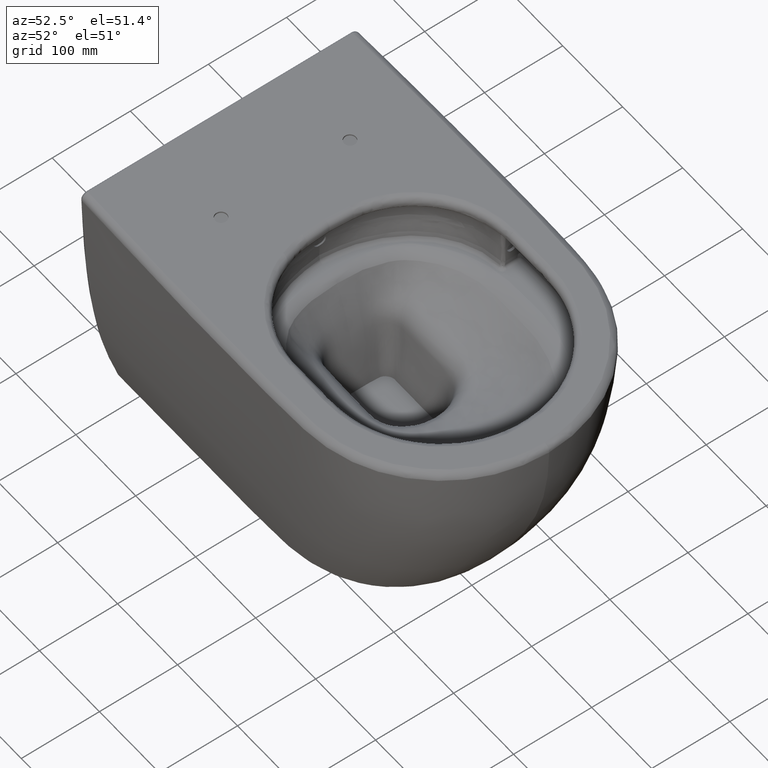
[diagram: clean part render]
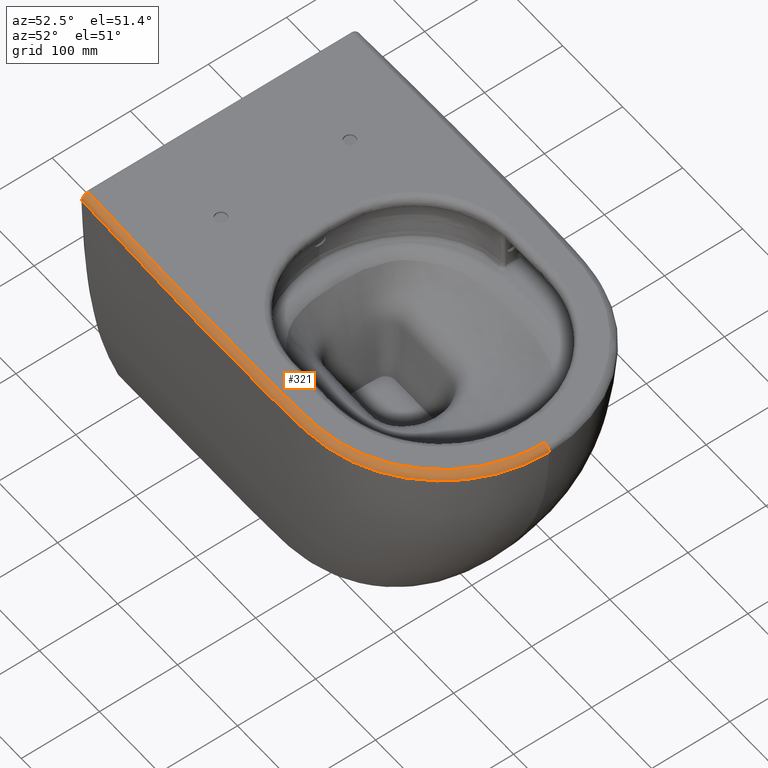
[diagram: same view with one face highlighted and labeled with its STEP entity id]
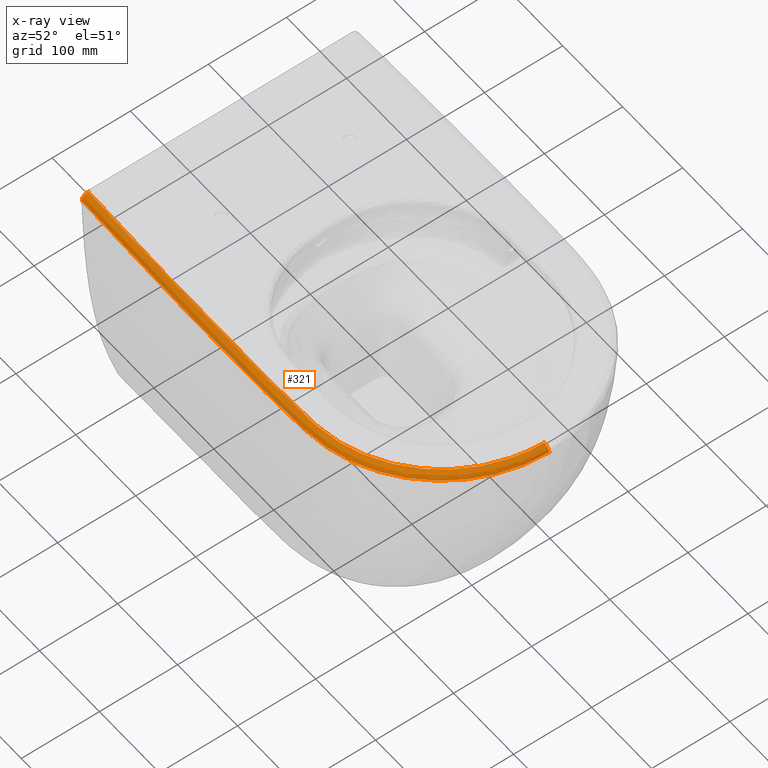
[diagram: x-ray of the same camera — body ghosted, the highlighted face saturated]
A machine part, auxiliary view. The second image highlights one B-rep face of the part: STEP entity #321.
The next image is the same camera in x-ray: the body ghosted, the highlighted face saturated — about 0% of this face is hidden behind the body in this view.
In plain terms, the highlighted face is a freeform B-spline surface patch.
Its self-contained STEP definition (entity closure, byte-faithful):
#65=(
BOUNDED_SURFACE()
B_SPLINE_SURFACE(3,2,((#18600,#18601,#18602),(#18603,#18604,#18605),(#18606,
#18607,#18608),(#18609,#18610,#18611),(#18612,#18613,#18614),(#18615,#18616,
#18617),(#18618,#18619,#18620),(#18621,#18622,#18623),(#18624,#18625,#18626),
(#18627,#18628,#18629),(#18630,#18631,#18632),(#18633,#18634,#18635),(#18636,
#18637,#18638),(#18639,#18640,#18641),(#18642,#18643,#18644),(#18645,#18646,
#18647),(#18648,#18649,#18650),(#18651,#18652,#18653),(#18654,#18655,#18656),
(#18657,#18658,#18659),(#18660,#18661,#18662),(#18663,#18664,#18665),(#18666,
#18667,#18668),(#18669,#18670,#18671),(#18672,#18673,#18674),(#18675,#18676,
#18677),(#18678,#18679,#18680),(#18681,#18682,#18683),(#18684,#18685,#18686),
(#18687,#18688,#18689),(#18690,#18691,#18692),(#18693,#18694,#18695),(#18696,
#18697,#18698),(#18699,#18700,#18701),(#18702,#18703,#18704),(#18705,#18706,
#18707),(#18708,#18709,#18710),(#18711,#18712,#18713),(#18714,#18715,#18716),
(#18717,#18718,#18719),(#18720,#18721,#18722),(#18723,#18724,#18725),(#18726,
#18727,#18728),(#18729,#18730,#18731),(#18732,#18733,#18734),(#18735,#18736,
#18737),(#18738,#18739,#18740),(#18741,#18742,#18743)),.UNSPECIFIED.,.F.,
 .F.,.F.)
B_SPLINE_SURFACE_WITH_KNOTS((4,2,2,2,2,2,2,2,2,2,2,2,2,2,2,2,2,2,2,2,2,
2,2,4),(3,3),(0.,0.0625,0.09375,0.125,0.15625,0.1875,0.25,0.375,0.4375,
0.5,0.53125,0.5625,0.59375,0.625,0.65625,0.6875,0.71875,0.75,0.8125,0.84375,
0.875,0.90625,0.9375,1.),(0.,1.),.UNSPECIFIED.)
GEOMETRIC_REPRESENTATION_ITEM()
RATIONAL_B_SPLINE_SURFACE(((1.,0.693323986367239,1.),(1.,0.691853276891526,
1.),(1.,0.690524254100873,1.),(1.,0.688774479505386,1.),(1.,0.688231622773556,
1.),(1.,0.687224785860818,1.),(1.,0.686803243985102,1.),(1.,0.685872407958468,
1.),(1.,0.685346400762625,1.),(1.,0.684386620349228,1.),(1.,0.683943223276197,
1.),(1.,0.682613517150949,1.),(1.,0.681732493670183,1.),(1.,0.679226182788848,
1.),(1.,0.67772236826971,1.),(1.,0.675705109226091,1.),(1.,0.675074157858912,
1.),(1.,0.673812252872676,1.),(1.,0.673178189194786,1.),(1.,0.67231780156765,
1.),(1.,0.672053276483602,1.),(1.,0.671500786596633,1.),(1.,0.671204731491319,
1.),(1.,0.670650261718393,1.),(1.,0.67036658523588,1.),(1.,0.670036341150816,
1.),(1.,0.67000218686592,1.),(1.,0.670256765628687,1.),(1.,0.670562146144866,
1.),(1.,0.671526975544283,1.),(1.,0.672200667352556,1.),(1.,0.673826035218981,
1.),(1.,0.674784914170329,1.),(1.,0.676842817335926,1.),(1.,0.677949632278162,
1.),(1.,0.68125144551455,1.),(1.,0.683412425882029,1.),(1.,0.686472051799072,
1.),(1.,0.687471727976981,1.),(1.,0.689432257478452,1.),(1.,0.690393278096555,
1.),(1.,0.692231868647639,1.),(1.,0.693119546765249,1.),(1.,0.694710733200944,
1.),(1.,0.695409536592535,1.),(1.,0.697017174255553,1.),(1.,0.697463282749246,
1.),(1.,0.697481985925623,1.)))
REPRESENTATION_ITEM('')
SURFACE()
);
#193=FACE_OUTER_BOUND('',#548,.T.);
#321=ADVANCED_FACE('',(#193),#65,.T.);
#437=CIRCLE('',#2284,8.);
#548=EDGE_LOOP('',(#978,#979,#980,#981));
#978=ORIENTED_EDGE('',*,*,#1610,.F.);
#979=ORIENTED_EDGE('',*,*,#1821,.T.);
#980=ORIENTED_EDGE('',*,*,#1707,.F.);
#981=ORIENTED_EDGE('',*,*,#1822,.F.);
#1351=VERTEX_POINT('',#2733);
#1352=VERTEX_POINT('',#2774);
#1441=VERTEX_POINT('',#5222);
#1445=VERTEX_POINT('',#5276);
#1610=EDGE_CURVE('',#1351,#1352,#1969,.T.);
#1707=EDGE_CURVE('',#1445,#1441,#2055,.T.);
#1821=EDGE_CURVE('',#1351,#1441,#2152,.T.);
#1822=EDGE_CURVE('',#1352,#1445,#437,.T.);
#1969=B_SPLINE_CURVE_WITH_KNOTS('',3,(#2734,#2735,#2736,#2737,#2738,#2739,
#2740,#2741,#2742,#2743,#2744,#2745,#2746,#2747,#2748,#2749,#2750,#2751,
#2752,#2753,#2754,#2755,#2756,#2757,#2758,#2759,#2760,#2761,#2762,#2763,
#2764,#2765,#2766,#2767,#2768,#2769,#2770,#2771,#2772,#2773),
 .UNSPECIFIED.,.F.,.F.,(4,2,2,2,2,2,2,2,2,2,2,2,2,2,2,2,2,2,2,4),(0.,0.0624999999999999,
0.125,0.1875,0.249999999999999,0.374999999999999,0.437499999999999,0.499999999999999,
0.562499999999999,0.624999999999999,0.656249999999999,0.687499999999999,
0.71875,0.75,0.8125,0.84375,0.875,0.90625,0.9375,1.),.UNSPECIFIED.);
#2055=B_SPLINE_CURVE_WITH_KNOTS('',3,(#5277,#5278,#5279,#5280,#5281,#5282,
#5283,#5284,#5285,#5286,#5287,#5288,#5289,#5290,#5291,#5292,#5293,#5294,
#5295,#5296,#5297,#5298,#5299,#5300,#5301,#5302,#5303,#5304,#5305,#5306,
#5307,#5308,#5309,#5310,#5311,#5312,#5313,#5314,#5315,#5316),
 .UNSPECIFIED.,.F.,.F.,(4,2,2,2,2,2,2,2,2,2,2,2,2,2,2,2,2,2,2,4),(0.,0.0625000000000006,
0.0937500000000009,0.125000000000001,0.156250000000001,0.187500000000002,
0.250000000000002,0.281250000000001,0.312500000000001,0.343750000000001,
0.375000000000001,0.437500000000001,0.500000000000001,0.562500000000001,
0.625000000000001,0.75,0.8125,0.875,0.9375,1.),.UNSPECIFIED.);
#2152=B_SPLINE_CURVE_WITH_KNOTS('',3,(#18593,#18594,#18595,#18596,#18597,
#18598),.UNSPECIFIED.,.F.,.F.,(4,2,4),(0.,0.5,1.),.UNSPECIFIED.);
#2284=AXIS2_PLACEMENT_3D('',#18599,#2393,#2394);
#2393=DIRECTION('',(0.,1.,0.));
#2394=DIRECTION('',(0.,0.,1.));
#2733=CARTESIAN_POINT('',(-19.2303729985999,-169.40105015213,8.99999999999905));
#2734=CARTESIAN_POINT('',(-19.2303729985999,-169.40105015213,8.99999999999862));
#2735=CARTESIAN_POINT('',(-5.9467829326102,-169.974848563831,8.99999999999861));
#2736=CARTESIAN_POINT('',(7.33770233310579,-170.455018732838,8.99999999999899));
#2737=CARTESIAN_POINT('',(33.9088280126786,-171.189953804016,8.99999999999896));
#2738=CARTESIAN_POINT('',(47.1959308358952,-171.396355671123,8.999999999999));
#2739=CARTESIAN_POINT('',(73.7704884331907,-171.772349138518,8.99999999999898));
#2740=CARTESIAN_POINT('',(87.0570290174481,-172.037555140802,8.99999999999861));
#2741=CARTESIAN_POINT('',(113.631881033334,-172.382755596986,8.99999999999858));
#2742=CARTESIAN_POINT('',(126.919431268814,-172.542362963652,8.99999999999884));
#2743=CARTESIAN_POINT('',(166.782785402965,-172.947614106726,8.9999999999988));
#2744=CARTESIAN_POINT('',(193.359543216883,-173.093488629881,8.99999999999867));
#2745=CARTESIAN_POINT('',(233.226707019044,-173.100289560561,8.99999999999862));
#2746=CARTESIAN_POINT('',(246.51611303449,-173.06580234487,8.99999999999902));
#2747=CARTESIAN_POINT('',(273.095301120705,-172.957496579745,8.99999999999899));
#2748=CARTESIAN_POINT('',(286.384936534393,-172.899016780364,8.99999999999864));
#2749=CARTESIAN_POINT('',(312.966140834856,-172.579836736234,8.99999999999862));
#2750=CARTESIAN_POINT('',(326.263462093225,-172.337722916912,8.99999999999855));
#2751=CARTESIAN_POINT('',(352.804686944581,-171.34179108378,8.99999999999852));
#2752=CARTESIAN_POINT('',(366.04854203846,-170.541707265277,8.99999999999877));
#2753=CARTESIAN_POINT('',(385.721933114021,-167.169282128858,8.99999999999875));
#2754=CARTESIAN_POINT('',(392.288845615773,-165.682651449991,8.99999999999846));
#2755=CARTESIAN_POINT('',(405.091301249741,-161.969917007304,8.99999999999844));
#2756=CARTESIAN_POINT('',(411.333428687216,-159.746935688021,8.99999999999879));
#2757=CARTESIAN_POINT('',(423.501495636008,-154.572383012859,8.99999999999878));
#2758=CARTESIAN_POINT('',(429.426966829684,-151.619732515312,8.99999999999872));
#2759=CARTESIAN_POINT('',(440.963445620798,-144.989814847232,8.9999999999987));
#2760=CARTESIAN_POINT('',(446.598523664415,-141.290953101186,8.99999999999843));
#2761=CARTESIAN_POINT('',(462.624588197803,-129.389020797392,8.99999999999842));
#2762=CARTESIAN_POINT('',(472.280444976245,-120.338902587172,8.99999999999834));
#2763=CARTESIAN_POINT('',(485.186951597465,-105.052509056224,8.99999999999832));
#2764=CARTESIAN_POINT('',(489.220185998806,-99.6604412897475,8.99999999999842));
#2765=CARTESIAN_POINT('',(496.520260971294,-88.5691056382983,8.99999999999841));
#2766=CARTESIAN_POINT('',(499.815072842883,-82.8349616337647,8.99999999999814));
#2767=CARTESIAN_POINT('',(505.729315408482,-71.0083287916148,8.99999999999814));
#2768=CARTESIAN_POINT('',(508.348787044091,-64.9158616768581,8.99999999999807));
#2769=CARTESIAN_POINT('',(512.913531205601,-52.3732097977387,8.99999999999806));
#2770=CARTESIAN_POINT('',(514.847084342086,-45.9399704297847,8.99999999999795));
#2771=CARTESIAN_POINT('',(519.514260824754,-26.5715379188491,8.99999999999795));
#2772=CARTESIAN_POINT('',(521.210015952879,-13.4256657032474,8.9999999999984));
#2773=CARTESIAN_POINT('',(521.210009837884,-6.34081312545328E-14,8.9999999999984));
#2774=CARTESIAN_POINT('',(521.210009837884,0.,8.9999999999984));
#5222=CARTESIAN_POINT('',(-19.3595098996278,-177.396571851814,0.681414294364177));
#5276=CARTESIAN_POINT('',(529.207085141705,-5.25838288303345E-14,0.783697931053027));
#5277=CARTESIAN_POINT('',(529.207085141705,-3.48390489175875E-14,0.7836979310526));
#5278=CARTESIAN_POINT('',(529.2070912429,-13.6878896744705,0.783703941084405));
#5279=CARTESIAN_POINT('',(527.527000896361,-27.0987952788872,0.773945503208375));
#5280=CARTESIAN_POINT('',(522.886590829921,-46.8655934058909,0.740475875074101));
#5281=CARTESIAN_POINT('',(520.966941540296,-53.426517272311,0.725885258434597));
#5282=CARTESIAN_POINT('',(516.418895473676,-66.2712755054237,0.692391986763366));
#5283=CARTESIAN_POINT('',(513.808828626295,-72.51525507133,0.673624698630551));
#5284=CARTESIAN_POINT('',(507.919316125153,-84.6478615854675,0.634627574446843));
#5285=CARTESIAN_POINT('',(504.640131666155,-90.5366271789905,0.614393751995667));
#5286=CARTESIAN_POINT('',(497.382528893279,-101.942957877337,0.572780552396047));
#5287=CARTESIAN_POINT('',(493.379800205222,-107.489060975599,0.551710822394506));
#5288=CARTESIAN_POINT('',(480.47507310965,-123.350841248882,0.487166288702836));
#5289=CARTESIAN_POINT('',(470.815598442514,-132.77884495923,0.442142598549052));
#5290=CARTESIAN_POINT('',(454.803982683145,-145.268462829805,0.372774244672799));
#5291=CARTESIAN_POINT('',(449.173252950865,-149.174477854504,0.349310562415948));
#5292=CARTESIAN_POINT('',(437.559267916266,-156.276780559071,0.304642185804742));
#5293=CARTESIAN_POINT('',(431.595951305036,-159.467503502766,0.283498135665468));
#5294=CARTESIAN_POINT('',(419.356269739062,-165.127185138146,0.246010969910439));
#5295=CARTESIAN_POINT('',(413.079890284221,-167.596112006074,0.229924060541154));
#5296=CARTESIAN_POINT('',(400.212226367595,-171.807932689783,0.204478115600811));
#5297=CARTESIAN_POINT('',(393.580353500029,-173.556525885759,0.195525019915686));
#5298=CARTESIAN_POINT('',(373.581676147474,-177.677936111812,0.178917517642324));
#5299=CARTESIAN_POINT('',(360.109620746144,-178.866073455243,0.183659046409356));
#5300=CARTESIAN_POINT('',(333.067737331993,-180.150153926278,0.206301094242302));
#5301=CARTESIAN_POINT('',(319.509866963043,-180.415299119517,0.219161166984405));
#5302=CARTESIAN_POINT('',(292.399198563251,-180.822313032877,0.242927137659878));
#5303=CARTESIAN_POINT('',(278.842110106016,-180.893314988902,0.256417051266963));
#5304=CARTESIAN_POINT('',(251.728847826801,-181.016643903682,0.283981557004745));
#5305=CARTESIAN_POINT('',(238.172183225954,-181.060339081814,0.297700245648188));
#5306=CARTESIAN_POINT('',(197.501989283418,-181.082518129735,0.340987275411369));
#5307=CARTESIAN_POINT('',(170.387735910022,-180.94965075731,0.373498668259101));
#5308=CARTESIAN_POINT('',(129.721065928825,-180.555200267299,0.42788203683341));
#5309=CARTESIAN_POINT('',(116.166023737444,-180.394896824081,0.447123998613682));
#5310=CARTESIAN_POINT('',(89.0563783154651,-180.049684170386,0.486383453957459));
#5311=CARTESIAN_POINT('',(75.5030477361139,-179.793291456192,0.507026165449037));
#5312=CARTESIAN_POINT('',(48.3944085597255,-179.391948579326,0.551124137136303));
#5313=CARTESIAN_POINT('',(34.839892993709,-179.201984453858,0.569725085915741));
#5314=CARTESIAN_POINT('',(7.73723391101795,-178.465046223215,0.620110026695229));
#5315=CARTESIAN_POINT('',(-5.81200597078416,-177.979446855367,0.649047463593486));
#5316=CARTESIAN_POINT('',(-19.3595098996278,-177.396571851814,0.681414294364413));
#18593=CARTESIAN_POINT('',(-19.2303729985999,-169.40105015213,8.99999999999918));
#18594=CARTESIAN_POINT('',(-19.2654316672795,-171.567888180347,8.9999999999992));
#18595=CARTESIAN_POINT('',(-19.299724777627,-173.690982891508,8.08337888372549));
#18596=CARTESIAN_POINT('',(-19.3475295857643,-176.653138412279,5.00012097650648));
#18597=CARTESIAN_POINT('',(-19.3609016554547,-177.482894615248,2.84683776684656));
#18598=CARTESIAN_POINT('',(-19.3595098996278,-177.396571851814,0.681414294364387));
#18599=CARTESIAN_POINT('',(521.210009837884,2.4930965375202E-13,0.99999999999822));
#18600=CARTESIAN_POINT('',(-23.4061294107952,-177.219833754577,0.691170401153441));
#18601=CARTESIAN_POINT('',(-23.420279641315,-177.540512541535,8.99999999999888));
#18602=CARTESIAN_POINT('',(-23.0537284927777,-169.233568177234,8.99999999999885));
#18603=CARTESIAN_POINT('',(-10.0198003882764,-177.809263710103,0.658756175357247));
#18604=CARTESIAN_POINT('',(-10.0057940979742,-178.16628710461,9.00000000602083));
#18605=CARTESIAN_POINT('',(-9.69853994398647,-169.82287749315,8.99999999999883));
#18606=CARTESIAN_POINT('',(3.38062105225485,-178.316908279646,0.629158152363057));
#18607=CARTESIAN_POINT('',(3.38960785022345,-178.705742119947,8.99999999650398));
#18608=CARTESIAN_POINT('',(3.65844332489732,-170.330171982554,8.99999999999911));
#18609=CARTESIAN_POINT('',(23.487666817113,-178.901738397867,0.590559096590245));
#18610=CARTESIAN_POINT('',(23.4819394024249,-179.33270471226,9.0000000017511));
#18611=CARTESIAN_POINT('',(23.698350146192,-170.914959505734,8.99999999999909));
#18612=CARTESIAN_POINT('',(30.1911695547964,-179.068398722795,0.578600210245929));
#18613=CARTESIAN_POINT('',(30.1855948616796,-179.512583883386,8.99999999975006));
#18614=CARTESIAN_POINT('',(30.3790050457734,-171.081673045486,8.99999999999913));
#18615=CARTESIAN_POINT('',(43.5996689481962,-179.344111082346,0.55644244617928));
#18616=CARTESIAN_POINT('',(43.5962079163726,-179.813003132671,9.00000000024855));
#18617=CARTESIAN_POINT('',(43.741711789094,-171.357639550582,8.99999999999911));
#18618=CARTESIAN_POINT('',(50.3337899604782,-179.440368744585,0.547175669225744));
#18619=CARTESIAN_POINT('',(50.332909521531,-179.919613607346,8.99999999987738));
#18620=CARTESIAN_POINT('',(50.4240846102555,-171.453689652191,8.99999999999904));
#18621=CARTESIAN_POINT('',(63.6753103207917,-179.609861329012,0.526731894281947));
#18622=CARTESIAN_POINT('',(63.6726834443743,-180.112007239886,9.00000000012084));
#18623=CARTESIAN_POINT('',(63.7893436730184,-171.624671311416,8.99999999999902));
#18624=CARTESIAN_POINT('',(70.325994181824,-179.729339112528,0.515191339838169));
#18625=CARTESIAN_POINT('',(70.321306625509,-180.244463609065,8.9999999999525));
#18626=CARTESIAN_POINT('',(70.4711176869669,-171.745352228294,8.99999999999887));
#18627=CARTESIAN_POINT('',(83.7017356013091,-179.961137044521,0.494157053153136));
#18628=CARTESIAN_POINT('',(83.6974301227927,-180.500042378013,9.00000000004524));
#18629=CARTESIAN_POINT('',(83.8348715770263,-171.978246304911,8.99999999999886));
#18630=CARTESIAN_POINT('',(90.4041939140203,-180.062525642509,0.484450178640504));
#18631=CARTESIAN_POINT('',(90.400742265569,-180.612438926561,8.99999999931505));
#18632=CARTESIAN_POINT('',(90.5171070800285,-172.079944706981,8.99999999999862));
#18633=CARTESIAN_POINT('',(110.471982016074,-180.327603684553,0.455366848834353));
#18634=CARTESIAN_POINT('',(110.482543482147,-180.910834514448,9.00000000136841));
#18635=CARTESIAN_POINT('',(110.564746455326,-172.346668460618,8.9999999999986));
#18636=CARTESIAN_POINT('',(123.835561125109,-180.486864172242,0.436135917935526));
#18637=CARTESIAN_POINT('',(123.844745750208,-181.092083040529,8.99999999838925));
#18638=CARTESIAN_POINT('',(123.930257295447,-172.507293673921,8.99999999999883));
#18639=CARTESIAN_POINT('',(163.966806154143,-180.903512214132,0.381526652252647));
#18640=CARTESIAN_POINT('',(164.027356805997,-181.572380334698,9.00000000322983));
#18641=CARTESIAN_POINT('',(164.028287195196,-172.927577634827,8.99999999999879));
#18642=CARTESIAN_POINT('',(190.731059951903,-181.057481523686,0.34889280296746));
#18643=CARTESIAN_POINT('',(190.781199519483,-181.763891480128,9.00000000522983));
#18644=CARTESIAN_POINT('',(190.763316472145,-173.083983300129,8.99999999999888));
#18645=CARTESIAN_POINT('',(230.881294450785,-181.07361970901,0.305231077172345));
#18646=CARTESIAN_POINT('',(230.895554580638,-181.831582925577,8.99999999737555));
#18647=CARTESIAN_POINT('',(230.871081621614,-173.103826387454,8.99999999999883));
#18648=CARTESIAN_POINT('',(244.264166671895,-181.04123324895,0.291595526364928));
#18649=CARTESIAN_POINT('',(244.278880944314,-181.815344052088,8.99999999817959));
#18650=CARTESIAN_POINT('',(244.241254764387,-173.072676731748,8.99999999999871));
#18651=CARTESIAN_POINT('',(271.022006973408,-180.934164199969,0.264360866083169));
#18652=CARTESIAN_POINT('',(271.038506425097,-181.740795564297,9.00000000182115));
#18653=CARTESIAN_POINT('',(270.982627891378,-172.968140148731,8.99999999999868));
#18654=CARTESIAN_POINT('',(284.39989373186,-180.876606639708,0.250696725146067));
#18655=CARTESIAN_POINT('',(284.416051511992,-181.699570234942,8.99999999878182));
#18656=CARTESIAN_POINT('',(284.353413780679,-172.911786361417,8.99999999999883));
#18657=CARTESIAN_POINT('',(304.523517854026,-180.649487735096,0.232178305471876));
#18658=CARTESIAN_POINT('',(304.538093611283,-181.494793201688,9.00000000060805));
#18659=CARTESIAN_POINT('',(304.412998626093,-172.687155802466,8.99999999999881));
#18660=CARTESIAN_POINT('',(311.241236348738,-180.543756144395,0.226488482284665));
#18661=CARTESIAN_POINT('',(311.258976785018,-181.39586385615,9.00000000036978));
#18662=CARTESIAN_POINT('',(311.101061826676,-172.582424965633,8.99999999999861));
#18663=CARTESIAN_POINT('',(324.669370837718,-180.26066189302,0.214611681067871));
#18664=CARTESIAN_POINT('',(324.69323744017,-181.127028651187,8.99999999962719));
#18665=CARTESIAN_POINT('',(324.475288222412,-172.301625504874,8.9999999999986));
#18666=CARTESIAN_POINT('',(331.378758091671,-180.096089812246,0.208251435302688));
#18667=CARTESIAN_POINT('',(331.405476817405,-180.970088863142,8.99999999983642));
#18668=CARTESIAN_POINT('',(331.160353880211,-172.138106925126,8.99999999999865));
#18669=CARTESIAN_POINT('',(344.862670739764,-179.617309902763,0.196347147109295));
#18670=CARTESIAN_POINT('',(344.903943816622,-180.505284482917,9.00000000016101));
#18671=CARTESIAN_POINT('',(344.517549188762,-171.665008913352,8.99999999999864));
#18672=CARTESIAN_POINT('',(351.624043514092,-179.312170369856,0.190261302216134));
#18673=CARTESIAN_POINT('',(351.674474359914,-180.207226303445,9.00000000085541));
#18674=CARTESIAN_POINT('',(351.19036962148,-171.363229102841,8.9999999999989));
#18675=CARTESIAN_POINT('',(365.275235717155,-178.271328945327,0.183178738309795));
#18676=CARTESIAN_POINT('',(365.365022470527,-179.172060207141,8.99999999914195));
#18677=CARTESIAN_POINT('',(364.499653741978,-170.349164297994,8.99999999999888));
#18678=CARTESIAN_POINT('',(372.154621373949,-177.511334311397,0.182446626871619));
#18679=CARTESIAN_POINT('',(372.269583258551,-178.410420536915,8.99999999959821));
#18680=CARTESIAN_POINT('',(371.134119198452,-169.614317206892,8.99999999999878));
#18681=CARTESIAN_POINT('',(385.894307299347,-175.2610353241,0.187905851061465));
#18682=CARTESIAN_POINT('',(386.068536641208,-176.143654286888,9.00000000039919));
#18683=CARTESIAN_POINT('',(384.341586992073,-167.450640961148,8.99999999999877));
#18684=CARTESIAN_POINT('',(392.810838751096,-173.756007523637,0.194453746099813));
#18685=CARTESIAN_POINT('',(393.014202485859,-174.624581624639,9.00000000020237));
#18686=CARTESIAN_POINT('',(390.955177351423,-166.009656907856,8.99999999999842));
#18687=CARTESIAN_POINT('',(406.340273258579,-169.948472623634,0.215171938347788));
#18688=CARTESIAN_POINT('',(406.603407648899,-170.774047692394,8.99999999979472));
#18689=CARTESIAN_POINT('',(403.880701959154,-162.370023851198,8.9999999999984));
#18690=CARTESIAN_POINT('',(412.94999058848,-167.653137212401,0.229649227611577));
#18691=CARTESIAN_POINT('',(413.237820962788,-168.452369639428,8.99999999984211));
#18692=CARTESIAN_POINT('',(410.182686458829,-160.179727943071,8.99999999999812));
#18693=CARTESIAN_POINT('',(425.826825097825,-162.289658776737,0.264653844669513));
#18694=CARTESIAN_POINT('',(426.160000925629,-163.024356790627,9.00000000015375));
#18695=CARTESIAN_POINT('',(422.465923801658,-155.06007600292,8.99999999999811));
#18696=CARTESIAN_POINT('',(432.09814915104,-159.219583180738,0.285337946722507));
#18697=CARTESIAN_POINT('',(432.447880208782,-159.919752345331,9.0000000003006));
#18698=CARTESIAN_POINT('',(428.446969809184,-152.130243355869,8.99999999999839));
#18699=CARTESIAN_POINT('',(444.294132217769,-152.317321069046,0.329842249888224));
#18700=CARTESIAN_POINT('',(444.670056734989,-152.942010863367,8.99999999969708));
#18701=CARTESIAN_POINT('',(440.090458032293,-145.536421163604,8.99999999999838));
#18702=CARTESIAN_POINT('',(450.252578528359,-148.45868533199,0.353831882047797));
#18703=CARTESIAN_POINT('',(450.636975929076,-149.04562761814,9.00000000082505));
#18704=CARTESIAN_POINT('',(445.782821716781,-141.848077624012,8.99999999999845));
#18705=CARTESIAN_POINT('',(467.206694814969,-136.017218114834,0.42557898545858));
#18706=CARTESIAN_POINT('',(467.577359793083,-136.510644423014,8.99999999835334));
#18707=CARTESIAN_POINT('',(461.985093803057,-129.951701053242,8.99999999999843));
#18708=CARTESIAN_POINT('',(477.414519342068,-126.54183995562,0.472774136896064));
#18709=CARTESIAN_POINT('',(477.7898792442,-126.96954088861,9.00000000470164));
#18710=CARTESIAN_POINT('',(471.743289036185,-120.888868348391,8.99999999999836));
#18711=CARTESIAN_POINT('',(491.072492095237,-110.503726181945,0.539885401778152));
#18712=CARTESIAN_POINT('',(491.449882916129,-110.812241128773,8.99999999765719));
#18713=CARTESIAN_POINT('',(484.787164942048,-105.565894249217,8.99999999999835));
#18714=CARTESIAN_POINT('',(495.347959258412,-104.834815337856,0.561862653628602));
#18715=CARTESIAN_POINT('',(495.718366026716,-105.113646835448,9.00000000005066));
#18716=CARTESIAN_POINT('',(488.868341661633,-100.152211893644,8.99999999999842));
#18717=CARTESIAN_POINT('',(503.092185051152,-93.1588784700894,0.605054027672654));
#18718=CARTESIAN_POINT('',(503.44225451459,-93.3817425986967,8.99999999994631));
#18719=CARTESIAN_POINT('',(496.254760513615,-89.0118521951694,8.99999999999841));
#18720=CARTESIAN_POINT('',(506.586199296995,-87.1210221180633,0.626272534194561));
#18721=CARTESIAN_POINT('',(506.925344690354,-87.3182061104361,9.00000000081917));
#18722=CARTESIAN_POINT('',(499.587815860014,-83.2505812155735,8.99999999999866));
#18723=CARTESIAN_POINT('',(512.849177071286,-74.6797742965975,0.666945837077972));
#18724=CARTESIAN_POINT('',(513.161615549602,-74.8312732231717,8.99999999918032));
#18725=CARTESIAN_POINT('',(505.569261669773,-71.3647686570872,8.99999999999865));
#18726=CARTESIAN_POINT('',(515.620100374303,-68.2738250155308,0.686625170245108));
#18727=CARTESIAN_POINT('',(515.919337935169,-68.4043849894138,9.00000000000966));
#18728=CARTESIAN_POINT('',(508.217863387596,-65.2403391692748,8.999999999998));
#18729=CARTESIAN_POINT('',(520.445669181018,-55.0903950861211,0.721957917679206));
#18730=CARTESIAN_POINT('',(520.717254018788,-55.1858829513532,8.99999999998636));
#18731=CARTESIAN_POINT('',(512.832565964817,-52.6293577840893,8.99999999999799));
#18732=CARTESIAN_POINT('',(522.488838934687,-48.3271903342297,0.737506184224607));
#18733=CARTESIAN_POINT('',(522.748935201735,-48.4056028239953,9.00000000155744));
#18734=CARTESIAN_POINT('',(514.787685534962,-46.1564170309962,8.99999999999791));
#18735=CARTESIAN_POINT('',(527.414362493307,-27.9843142906908,0.773308677554879));
#18736=CARTESIAN_POINT('',(527.640467237967,-28.0413289174378,8.99999999688604));
#18737=CARTESIAN_POINT('',(519.50181165954,-26.6820685291649,8.99999999999791));
#18738=CARTESIAN_POINT('',(529.20709176385,-14.1693648133795,0.783704157741654));
#18739=CARTESIAN_POINT('',(529.429316808754,-14.1891796442079,8.99999996732357));
#18740=CARTESIAN_POINT('',(521.210015975935,-13.4730474530249,9.00000000000006));
#18741=CARTESIAN_POINT('',(529.207085141703,3.64243253078111E-6,0.783697931052073));
#18742=CARTESIAN_POINT('',(529.429316778782,3.74365249230665E-6,9.00000000000006));
#18743=CARTESIAN_POINT('',(521.210009837884,3.93524862885731E-13,9.00000000000006));